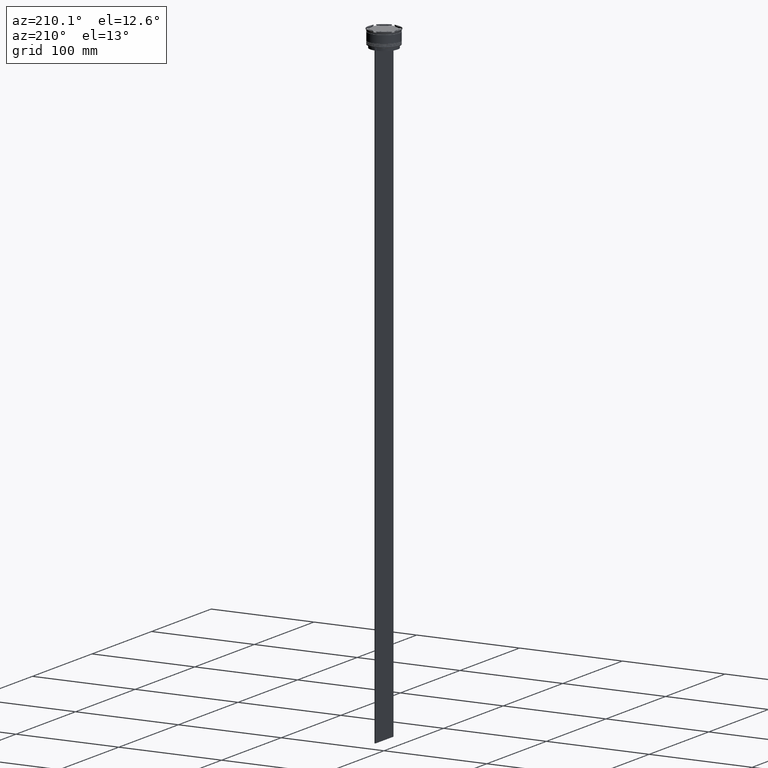
[diagram: clean part render]
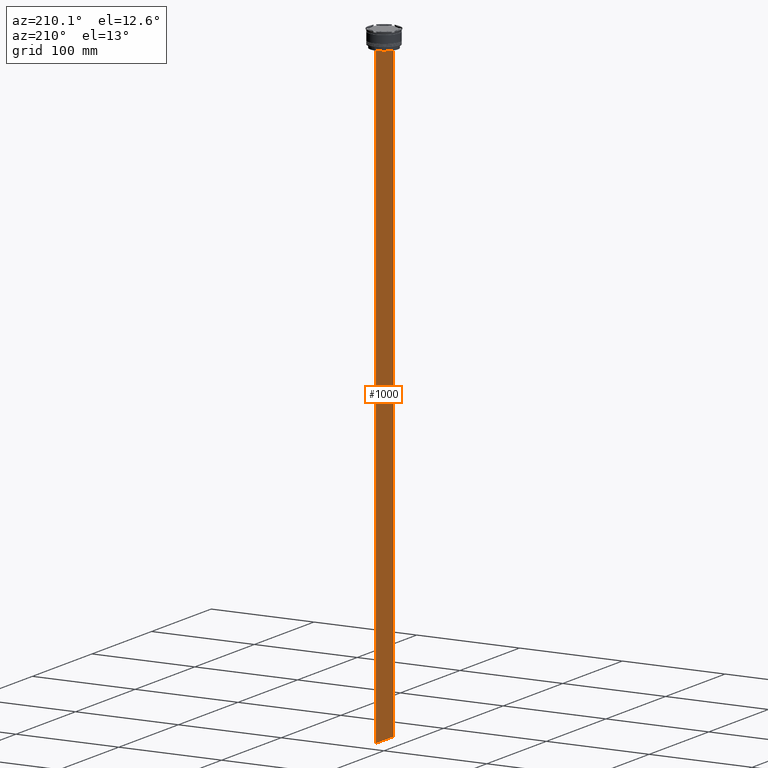
[diagram: same view with one face highlighted and labeled with its STEP entity id]
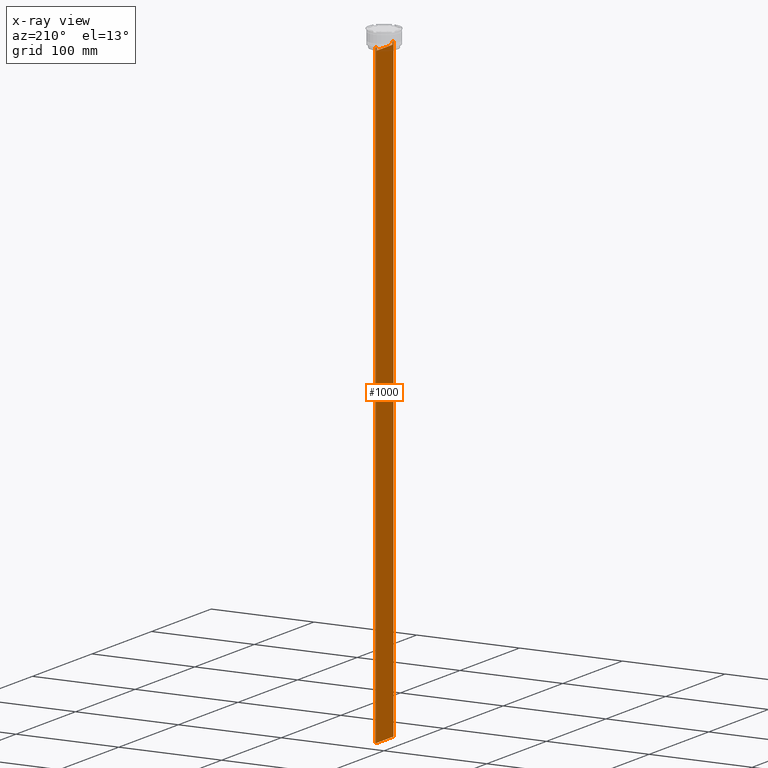
[diagram: x-ray of the same camera — body ghosted, the highlighted face saturated]
A machine part, auxiliary view. The second image highlights one B-rep face of the part: STEP entity #1000.
The next image is the same camera in x-ray: the body ghosted, the highlighted face saturated — about 0% of this face is hidden behind the body in this view.
In plain terms, the highlighted planar face has unit normal (-1, 0, 0).
Its self-contained STEP definition (entity closure, byte-faithful):
#11 = AXIS2_PLACEMENT_3D ( 'NONE', #1153, #2687, #1336 ) ;
#51 = PLANE ( 'NONE',  #11 ) ;
#80 = LINE ( 'NONE', #973, #803 ) ;
#95 = DIRECTION ( 'NONE',  ( 0.000000000000000000, 1.000000000000000000, 0.000000000000000000 ) ) ;
#96 = EDGE_CURVE ( 'NONE', #149, #2044, #1940, .T. ) ;
#101 = ORIENTED_EDGE ( 'NONE', *, *, #96, .T. ) ;
#128 = DIRECTION ( 'NONE',  ( 0.000000000000000000, 0.000000000000000000, -1.000000000000000000 ) ) ;
#141 = ORIENTED_EDGE ( 'NONE', *, *, #1081, .F. ) ;
#148 = VECTOR ( 'NONE', #2450, 1000.000000000000000 ) ;
#149 = VERTEX_POINT ( 'NONE', #858 ) ;
#183 = CARTESIAN_POINT ( 'NONE',  ( -0.4999999999999998890, 14.99999999999999645, 16.01666203960726165 ) ) ;
#315 = DIRECTION ( 'NONE',  ( 0.000000000000000000, -1.000000000000000000, 0.000000000000000000 ) ) ;
#331 = CARTESIAN_POINT ( 'NONE',  ( -0.4999999999999998890, -13.55744911241550277, -14.33333542435722485 ) ) ;
#412 = CARTESIAN_POINT ( 'NONE',  ( -0.4999999999999998890, -13.72422766745777345, -14.16666868242426958 ) ) ;
#455 = DIRECTION ( 'NONE',  ( 0.000000000000000000, -1.000000000000000000, 0.000000000000000000 ) ) ;
#457 = EDGE_CURVE ( 'NONE', #2496, #511, #1455, .T. ) ;
#479 = VECTOR ( 'NONE', #128, 1000.000000000000000 ) ;
#491 = LINE ( 'NONE', #641, #1785 ) ;
#511 = VERTEX_POINT ( 'NONE', #1946 ) ;
#515 = VERTEX_POINT ( 'NONE', #1516 ) ;
#598 = CARTESIAN_POINT ( 'NONE',  ( -0.4999999999999998890, -13.89100428334828230, -14.00000000000000178 ) ) ;
#641 = CARTESIAN_POINT ( 'NONE',  ( -0.4999999999999998890, -15.00000000000000355, -14.00000000000000178 ) ) ;
#780 = EDGE_CURVE ( 'NONE', #2507, #1400, #2301, .T. ) ;
#801 = VECTOR ( 'NONE', #1897, 1000.000000000000000 ) ;
#803 = VECTOR ( 'NONE', #315, 1000.000000000000000 ) ;
#823 = CARTESIAN_POINT ( 'NONE',  ( -0.4999999999999998890, 13.39066839257847263, -14.49999999999999822 ) ) ;
#831 = CARTESIAN_POINT ( 'NONE',  ( -0.4999999999999998890, 13.39066839257847086, -17.00000000000000000 ) ) ;
#839 = DIRECTION ( 'NONE',  ( 0.000000000000000000, 0.000000000000000000, -1.000000000000000000 ) ) ;
#848 = EDGE_CURVE ( 'NONE', #511, #2044, #2288, .T. ) ;
#858 = CARTESIAN_POINT ( 'NONE',  ( -0.4999999999999998890, 14.99999999999999645, -14.00000000000000178 ) ) ;
#863 = EDGE_CURVE ( 'NONE', #1013, #515, #1131, .T. ) ;
#873 = VERTEX_POINT ( 'NONE', #1932 ) ;
#882 = CARTESIAN_POINT ( 'NONE',  ( -0.4999999999999998890, 13.89100428334828230, -14.00000000000000178 ) ) ;
#887 = ORIENTED_EDGE ( 'NONE', *, *, #457, .F. ) ;
#909 = LINE ( 'NONE', #1802, #1695 ) ;
#950 = VERTEX_POINT ( 'NONE', #1041 ) ;
#973 = CARTESIAN_POINT ( 'NONE',  ( -0.4999999999999998890, -15.00000000000000355, -14.00000000000000178 ) ) ;
#981 = VECTOR ( 'NONE', #839, 1000.000000000000000 ) ;
#1000 = ADVANCED_FACE ( 'NONE', ( #2222 ), #51, .T. ) ;
#1013 = VERTEX_POINT ( 'NONE', #1115 ) ;
#1019 = CARTESIAN_POINT ( 'NONE',  ( -0.4999999999999998890, 13.40000000000000391, -17.00000000000000000 ) ) ;
#1041 = CARTESIAN_POINT ( 'NONE',  ( -0.4999999999999998890, 13.89100428334828230, -14.00000000000000178 ) ) ;
#1081 = EDGE_CURVE ( 'NONE', #515, #1596, #491, .T. ) ;
#1083 = VECTOR ( 'NONE', #95, 1000.000000000000000 ) ;
#1091 = CARTESIAN_POINT ( 'NONE',  ( -0.4999999999999998890, 13.72422766736833566, -14.16666868251365052 ) ) ;
#1111 = VERTEX_POINT ( 'NONE', #2051 ) ;
#1115 = CARTESIAN_POINT ( 'NONE',  ( -0.4999999999999998890, -13.39066839257847263, -14.49999999999999822 ) ) ;
#1131 = B_SPLINE_CURVE_WITH_KNOTS ( 'NONE', 3,
 ( #1440, #331, #412, #598 ),
 .UNSPECIFIED., .F., .F.,
 ( 4, 4 ),
 ( 0.06160226316123729867, 0.06231007364084071437 ),
 .UNSPECIFIED. ) ;
#1134 = ORIENTED_EDGE ( 'NONE', *, *, #1565, .F. ) ;
#1149 = LINE ( 'NONE', #1549, #2430 ) ;
#1153 = CARTESIAN_POINT ( 'NONE',  ( -0.4999999999999998890, -15.00000000000000355, 16.01666203960726165 ) ) ;
#1181 = CARTESIAN_POINT ( 'NONE',  ( -0.4999999999999998890, -15.00000000000000355, -14.00000000000000178 ) ) ;
#1275 = EDGE_CURVE ( 'NONE', #1596, #2496, #80, .T. ) ;
#1336 = DIRECTION ( 'NONE',  ( 0.000000000000000000, 0.000000000000000000, 1.000000000000000000 ) ) ;
#1346 = DIRECTION ( 'NONE',  ( -0.000000000000000000, -0.000000000000000000, 1.000000000000000000 ) ) ;
#1397 = ORIENTED_EDGE ( 'NONE', *, *, #2394, .F. ) ;
#1400 = VERTEX_POINT ( 'NONE', #1722 ) ;
#1439 = ORIENTED_EDGE ( 'NONE', *, *, #863, .F. ) ;
#1440 = CARTESIAN_POINT ( 'NONE',  ( -0.4999999999999998890, -13.39066839257847263, -14.49999999999999822 ) ) ;
#1455 = LINE ( 'NONE', #2739, #479 ) ;
#1467 = DIRECTION ( 'NONE',  ( 0.000000000000000000, -1.000000000000000000, 0.000000000000000000 ) ) ;
#1478 = EDGE_CURVE ( 'NONE', #873, #950, #1149, .T. ) ;
#1516 = CARTESIAN_POINT ( 'NONE',  ( -0.4999999999999998890, -13.89100428334828230, -14.00000000000000178 ) ) ;
#1546 = EDGE_CURVE ( 'NONE', #1111, #2507, #2233, .T. ) ;
#1549 = CARTESIAN_POINT ( 'NONE',  ( -0.4999999999999998890, -15.00000000000000355, -14.00000000000000178 ) ) ;
#1565 = EDGE_CURVE ( 'NONE', #1400, #1013, #909, .T. ) ;
#1569 = CARTESIAN_POINT ( 'NONE',  ( -0.4999999999999998890, 13.39066839257847263, 0.000000000000000000 ) ) ;
#1596 = VERTEX_POINT ( 'NONE', #2782 ) ;
#1695 = VECTOR ( 'NONE', #1346, 1000.000000000000000 ) ;
#1722 = CARTESIAN_POINT ( 'NONE',  ( -0.4999999999999998890, -13.39066839257847086, -17.00000000000000000 ) ) ;
#1773 = ORIENTED_EDGE ( 'NONE', *, *, #1546, .F. ) ;
#1785 = VECTOR ( 'NONE', #2654, 1000.000000000000000 ) ;
#1786 = CARTESIAN_POINT ( 'NONE',  ( -0.4999999999999998890, 14.99999999999999645, -614.0000000000000000 ) ) ;
#1802 = CARTESIAN_POINT ( 'NONE',  ( -0.4999999999999998890, -13.39066839257847263, 0.000000000000000000 ) ) ;
#1803 = EDGE_CURVE ( 'NONE', #950, #1111, #2281, .T. ) ;
#1846 = ORIENTED_EDGE ( 'NONE', *, *, #848, .F. ) ;
#1897 = DIRECTION ( 'NONE',  ( 0.000000000000000000, -1.000000000000000000, 0.000000000000000000 ) ) ;
#1932 = CARTESIAN_POINT ( 'NONE',  ( -0.4999999999999998890, 14.89160837518903513, -14.00000000000000178 ) ) ;
#1940 = LINE ( 'NONE', #183, #981 ) ;
#1946 = CARTESIAN_POINT ( 'NONE',  ( -0.4999999999999998890, -15.00000000000000355, -614.0000000000000000 ) ) ;
#1995 = CARTESIAN_POINT ( 'NONE',  ( -0.4999999999999998890, 13.55744911232272543, -14.33333542444994002 ) ) ;
#2044 = VERTEX_POINT ( 'NONE', #1786 ) ;
#2051 = CARTESIAN_POINT ( 'NONE',  ( -0.4999999999999998890, 13.39066839257847263, -14.49999999999999822 ) ) ;
#2061 = ORIENTED_EDGE ( 'NONE', *, *, #1478, .F. ) ;
#2095 = CARTESIAN_POINT ( 'NONE',  ( -0.4999999999999998890, -15.00000000000000355, -614.0000000000000000 ) ) ;
#2140 = EDGE_LOOP ( 'NONE', ( #2473, #2061, #1397, #101, #1846, #887, #2679, #141, #1439, #1134, #2293, #1773 ) ) ;
#2222 = FACE_OUTER_BOUND ( 'NONE', #2140, .T. ) ;
#2233 = LINE ( 'NONE', #1569, #148 ) ;
#2281 = B_SPLINE_CURVE_WITH_KNOTS ( 'NONE', 3,
 ( #882, #1091, #1995, #823 ),
 .UNSPECIFIED., .F., .F.,
 ( 4, 4 ),
 ( 0.02359665025569773755, 0.02430399458637444096 ),
 .UNSPECIFIED. ) ;
#2288 = LINE ( 'NONE', #2095, #1083 ) ;
#2293 = ORIENTED_EDGE ( 'NONE', *, *, #780, .F. ) ;
#2301 = LINE ( 'NONE', #1019, #801 ) ;
#2394 = EDGE_CURVE ( 'NONE', #149, #873, #2777, .T. ) ;
#2430 = VECTOR ( 'NONE', #455, 1000.000000000000000 ) ;
#2450 = DIRECTION ( 'NONE',  ( 0.000000000000000000, 0.000000000000000000, -1.000000000000000000 ) ) ;
#2473 = ORIENTED_EDGE ( 'NONE', *, *, #1803, .F. ) ;
#2496 = VERTEX_POINT ( 'NONE', #2814 ) ;
#2507 = VERTEX_POINT ( 'NONE', #831 ) ;
#2623 = VECTOR ( 'NONE', #1467, 1000.000000000000000 ) ;
#2654 = DIRECTION ( 'NONE',  ( 0.000000000000000000, -1.000000000000000000, 0.000000000000000000 ) ) ;
#2679 = ORIENTED_EDGE ( 'NONE', *, *, #1275, .F. ) ;
#2687 = DIRECTION ( 'NONE',  ( -1.000000000000000000, 0.000000000000000000, 0.000000000000000000 ) ) ;
#2739 = CARTESIAN_POINT ( 'NONE',  ( -0.4999999999999998890, -15.00000000000000355, 16.01666203960726165 ) ) ;
#2777 = LINE ( 'NONE', #1181, #2623 ) ;
#2782 = CARTESIAN_POINT ( 'NONE',  ( -0.4999999999999998890, -14.89160837518903513, -14.00000000000000178 ) ) ;
#2814 = CARTESIAN_POINT ( 'NONE',  ( -0.4999999999999998890, -15.00000000000000355, -14.00000000000000178 ) ) ;